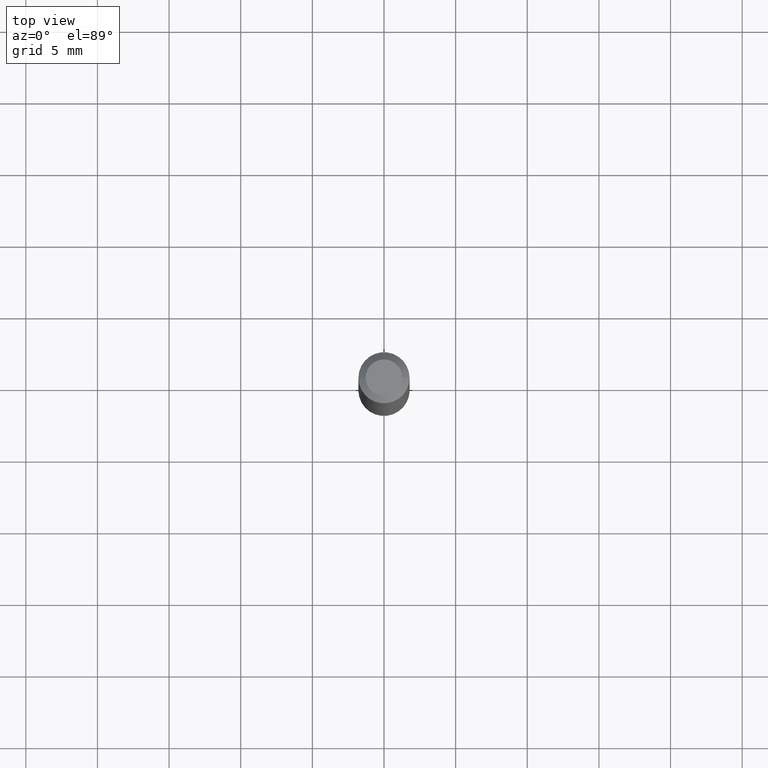
[diagram: clean part render]
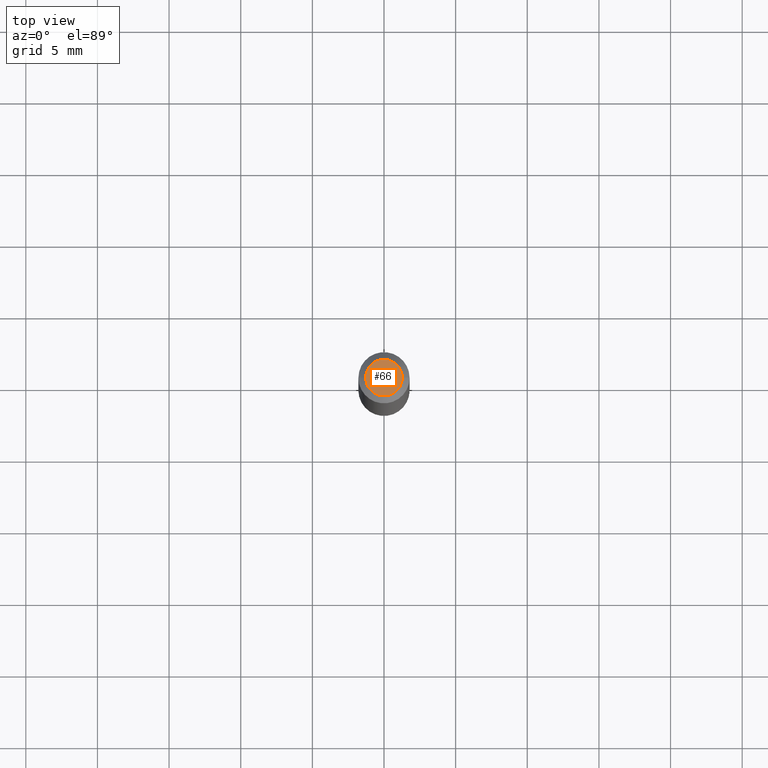
[diagram: same view with one face highlighted and labeled with its STEP entity id]
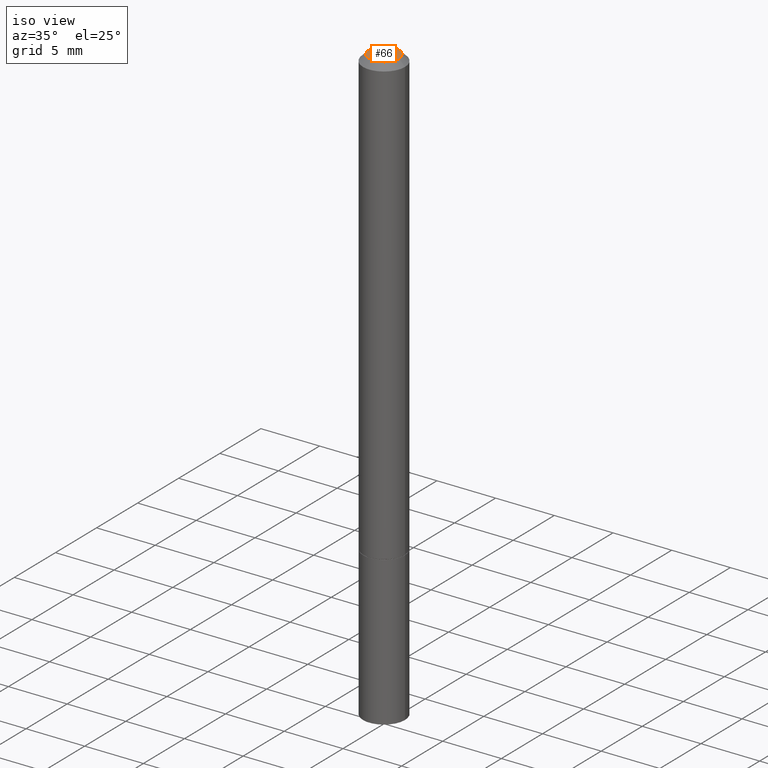
[diagram: same view with one face highlighted and labeled with its STEP entity id]
A machine part, top view. The second image highlights one B-rep face of the part: STEP entity #66.
A second angle (iso view) of the same face is appended — the face is thin or edge-on in the first view.
In plain terms, the highlighted planar face has unit normal (0, -0, -1).
Its self-contained STEP definition (entity closure, byte-faithful):
#16 = DIRECTION ( 'NONE',  ( -2.445468806185136597E-29, 3.491481338843145583E-15, 1.000000000000000000 ) ) ;
#26 = CIRCLE ( 'NONE', #127, 0.05029999999999981708 ) ;
#51 = ORIENTED_EDGE ( 'NONE', *, *, #172, .T. ) ;
#66 = ADVANCED_FACE ( 'NONE', ( #112 ), #202, .F. ) ;
#73 = CARTESIAN_POINT ( 'NONE',  ( 0.000000000000000000, 0.000000000000000000, 0.000000000000000000 ) ) ;
#104 = DIRECTION ( 'NONE',  ( 1.000000000000000000, -6.982962677686266711E-15, 4.876176775795936353E-29 ) ) ;
#112 = FACE_OUTER_BOUND ( 'NONE', #179, .T. ) ;
#117 = AXIS2_PLACEMENT_3D ( 'NONE', #354, #325, #104 ) ;
#125 = VERTEX_POINT ( 'NONE', #287 ) ;
#127 = AXIS2_PLACEMENT_3D ( 'NONE', #73, #16, #188 ) ;
#172 = EDGE_CURVE ( 'NONE', #258, #125, #212, .T. ) ;
#179 = EDGE_LOOP ( 'NONE', ( #333, #51 ) ) ;
#188 = DIRECTION ( 'NONE',  ( 1.000000000000000000, -6.982962677686266711E-15, 4.876176775795936353E-29 ) ) ;
#202 = PLANE ( 'NONE',  #302 ) ;
#212 = CIRCLE ( 'NONE', #117, 0.05029999999999981708 ) ;
#236 = DIRECTION ( 'NONE',  ( -1.000000000000000000, 6.982962677686265922E-15, -4.876176775795935793E-29 ) ) ;
#258 = VERTEX_POINT ( 'NONE', #265 ) ;
#265 = CARTESIAN_POINT ( 'NONE',  ( 0.05029999999999981708, -4.486028426540536026E-16, 2.796359263189735848E-30 ) ) ;
#287 = CARTESIAN_POINT ( 'NONE',  ( -0.05029999999999981708, 3.861578360760490633E-16, -2.578333688018695256E-30 ) ) ;
#302 = AXIS2_PLACEMENT_3D ( 'NONE', #356, #326, #236 ) ;
#325 = DIRECTION ( 'NONE',  ( -2.445468806185136597E-29, 3.491481338843145583E-15, 1.000000000000000000 ) ) ;
#326 = DIRECTION ( 'NONE',  ( 2.438088387897960049E-29, -3.491481338843145188E-15, -1.000000000000000000 ) ) ;
#333 = ORIENTED_EDGE ( 'NONE', *, *, #389, .T. ) ;
#354 = CARTESIAN_POINT ( 'NONE',  ( 0.000000000000000000, 0.000000000000000000, 0.000000000000000000 ) ) ;
#356 = CARTESIAN_POINT ( 'NONE',  ( 3.512430226876179072E-16, 0.05029999999999981708, -1.756215113438095946E-16 ) ) ;
#389 = EDGE_CURVE ( 'NONE', #125, #258, #26, .T. ) ;